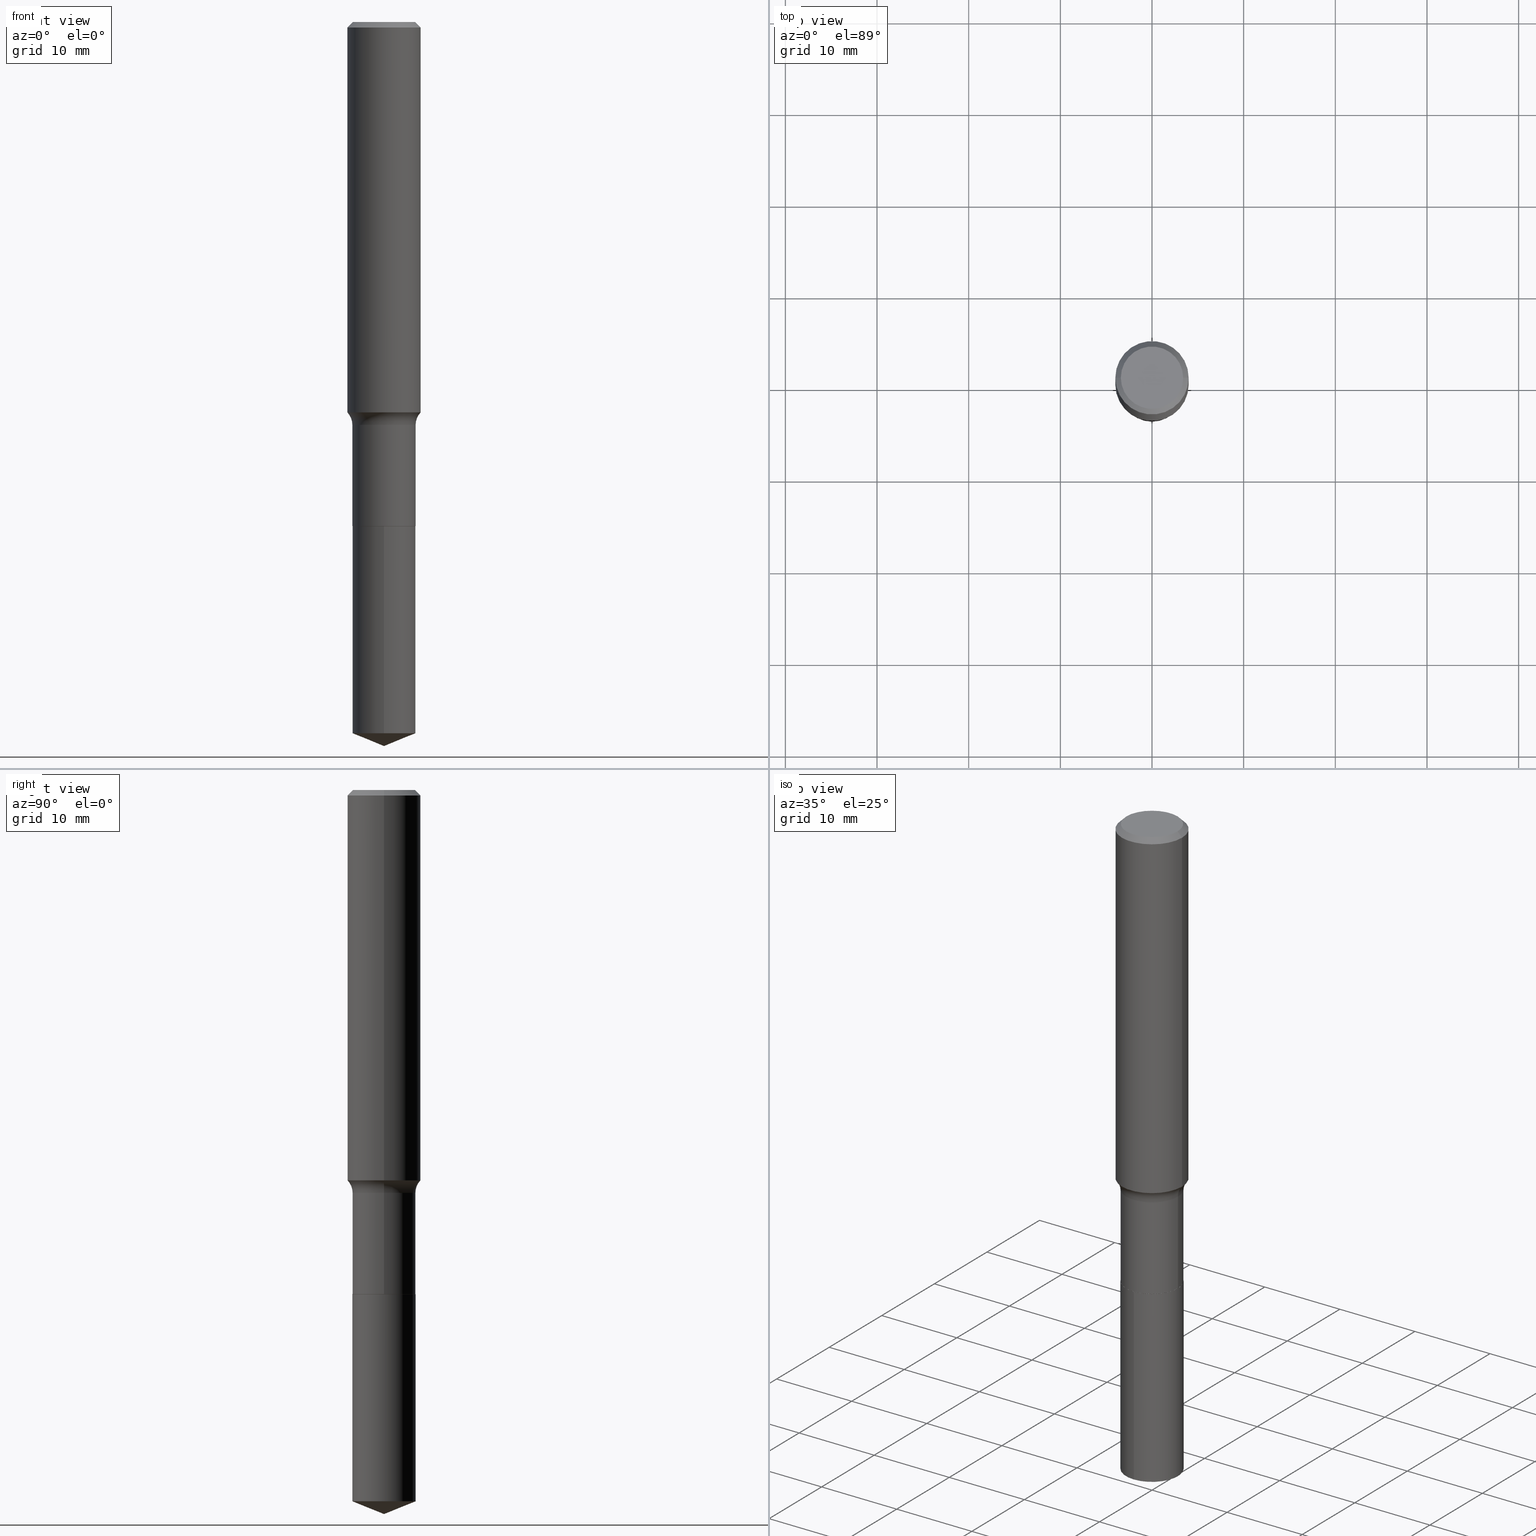
[diagram: canonical four-view strip — front | top / right | iso, engineering-drawing reading convention]
A machine part, canonical four-view strip (front | top / right | iso — engineering-drawing reading convention). The complete STEP part file that produces these views, byte-faithful:
ISO-10303-21;
HEADER;
FILE_DESCRIPTION (( 'STEP AP203' ),
    '1' );
FILE_NAME ('69159.STEP',
    '2024-04-19T17:18:02',
    ( '' ),
    ( '' ),
    'SwSTEP 2.0',
    'SolidWorks 2023',
    '' );
FILE_SCHEMA (( 'CONFIG_CONTROL_DESIGN' ));
ENDSEC;

DATA;
#1 = CLOSED_SHELL ( 'NONE', ( #127, #76, #310, #247, #19 ) ) ;
#2 =( GEOMETRIC_REPRESENTATION_CONTEXT ( 3 ) GLOBAL_UNCERTAINTY_ASSIGNED_CONTEXT ( ( #182 ) ) GLOBAL_UNIT_ASSIGNED_CONTEXT ( ( #431, #18, #315 ) ) REPRESENTATION_CONTEXT ( 'NONE', 'WORKASPACE' ) );
#3 = DIRECTION ( 'NONE',  ( 1.000000000000000000, -6.982962677686265922E-15, 0.000000000000000000 ) ) ;
#4 = DIRECTION ( 'NONE',  ( -2.445468806185136597E-29, 3.491481338843145583E-15, 1.000000000000000000 ) ) ;
#5 = CC_DESIGN_PERSON_AND_ORGANIZATION_ASSIGNMENT ( #398, #323, ( #259 ) ) ;
#6 = CARTESIAN_POINT ( 'NONE',  ( 0.1338749999999999940, -1.040731925365424925E-15, 4.101342130351390035E-18 ) ) ;
#7 = CLOSED_SHELL ( 'NONE', ( #382, #236, #197, #322, #146, #280, #91, #240, #203, #191, #163, #300 ) ) ;
#8 = CONICAL_SURFACE ( 'NONE', #360, 97.44436430772813651, 1.186823891356143967 ) ;
#9 = DIRECTION ( 'NONE',  ( -6.982962677686266711E-15, -1.000000000000000000, 4.021859394426593130E-15 ) ) ;
#10 = PRODUCT_DEFINITION ( 'UNKNOWN', '', #259, #217 ) ;
#11 = VERTEX_POINT ( 'NONE', #260 ) ;
#12 = FACE_OUTER_BOUND ( 'NONE', #369, .T. ) ;
#13 = APPROVAL_STATUS ( 'not_yet_approved' ) ;
#14 = CARTESIAN_POINT ( 'NONE',  ( 5.295173606032675561E-29, -7.560104542997063911E-15, -2.165299999999999780 ) ) ;
#15 = ORIENTED_EDGE ( 'NONE', *, *, #45, .T. ) ;
#16 = DIRECTION ( 'NONE',  ( -6.982962677686265922E-15, -1.000000000000000000, 3.498761904101837813E-15 ) ) ;
#17 = AXIS2_PLACEMENT_3D ( 'NONE', #358, #434, #126 ) ;
#18 =( NAMED_UNIT ( * ) PLANE_ANGLE_UNIT ( ) SI_UNIT ( $, .RADIAN. ) );
#19 = ADVANCED_FACE ( 'NONE', ( #414 ), #70, .F. ) ;
#20 = DIRECTION ( 'NONE',  ( -2.445468806185136597E-29, 3.491481338843145583E-15, 1.000000000000000000 ) ) ;
#21 = CC_DESIGN_PERSON_AND_ORGANIZATION_ASSIGNMENT ( #352, #56, ( #207 ) ) ;
#22 = ORIENTED_EDGE ( 'NONE', *, *, #54, .F. ) ;
#23 = CARTESIAN_POINT ( 'NONE',  ( 0.000000000000000000, 0.000000000000000000, 0.000000000000000000 ) ) ;
#24 = ORIENTED_EDGE ( 'NONE', *, *, #290, .F. ) ;
#25 = DIRECTION ( 'NONE',  ( 1.000000000000000000, -6.982962677686265922E-15, 4.876176775795935793E-29 ) ) ;
#26 = ORIENTED_EDGE ( 'NONE', *, *, #420, .T. ) ;
#27 = ORIENTED_EDGE ( 'NONE', *, *, #221, .F. ) ;
#28 = DATE_AND_TIME ( #487, #238 ) ;
#29 = DIRECTION ( 'NONE',  ( -2.445364985460457851E-29, 3.491630016029994283E-15, 1.000000000000000000 ) ) ;
#30 = ORIENTED_EDGE ( 'NONE', *, *, #460, .T. ) ;
#31 = CYLINDRICAL_SURFACE ( 'NONE', #441, 0.1575000000000000844 ) ;
#32 = DIRECTION ( 'NONE',  ( 2.445364985460457571E-29, -3.491630016029994283E-15, -1.000000000000000000 ) ) ;
#33 = CIRCLE ( 'NONE', #257, 0.1358499999999999985 ) ;
#34 = ORGANIZATION ( 'UNSPECIFIED', 'UNSPECIFIED', '' ) ;
#35 = FACE_OUTER_BOUND ( 'NONE', #253, .T. ) ;
#36 = CC_DESIGN_PERSON_AND_ORGANIZATION_ASSIGNMENT ( #93, #436, ( #10 ) ) ;
#37 = DIRECTION ( 'NONE',  ( -6.982962677686266711E-15, -1.000000000000000000, 4.021859394426593130E-15 ) ) ;
#38 = CARTESIAN_POINT ( 'NONE',  ( 7.471580323854498020E-29, -1.066770077841346112E-14, -3.055313037220293904 ) ) ;
#39 = AXIS2_PLACEMENT_3D ( 'NONE', #467, #282, #202 ) ;
#40 = VECTOR ( 'NONE', #381, 39.37007874015748143 ) ;
#41 = DIRECTION ( 'NONE',  ( -6.474490251793175473E-15, -0.9271838545667860920, 0.3746065934159154009 ) ) ;
#42 = DIRECTION ( 'NONE',  ( -2.445364985460457851E-29, 3.491630016029994283E-15, 1.000000000000000000 ) ) ;
#43 = ORIENTED_EDGE ( 'NONE', *, *, #54, .T. ) ;
#44 = DIRECTION ( 'NONE',  ( 0.000000000000000000, 0.000000000000000000, 1.000000000000000000 ) ) ;
#45 = EDGE_CURVE ( 'NONE', #164, #11, #33, .T. ) ;
#46 = LINE ( 'NONE', #49, #79 ) ;
#47 = CIRCLE ( 'NONE', #391, 0.1575000000000001954 ) ;
#48 = CIRCLE ( 'NONE', #319, 0.1358499999999999985 ) ;
#49 = CARTESIAN_POINT ( 'NONE',  ( 7.606027726323578018E-29, -1.085902381443112281E-14, -3.110199999999999854 ) ) ;
#50 = COORDINATED_UNIVERSAL_TIME_OFFSET ( 5, 0, .BEHIND. ) ;
#51 = DIRECTION ( 'NONE',  ( -2.445364985460457851E-29, 3.491630016029994283E-15, 1.000000000000000000 ) ) ;
#52 = EDGE_LOOP ( 'NONE', ( #99, #432, #477, #293 ) ) ;
#53 = ORIENTED_EDGE ( 'NONE', *, *, #114, .T. ) ;
#54 = EDGE_CURVE ( 'NONE', #486, #205, #188, .T. ) ;
#55 = EDGE_CURVE ( 'NONE', #486, #356, #249, .T. ) ;
#56 = PERSON_AND_ORGANIZATION_ROLE ( 'design_owner' ) ;
#57 = CONICAL_SURFACE ( 'NONE', #337, 0.1575000000000000011, 0.7853981633974447263 ) ;
#58 = PRODUCT_DEFINITION_SHAPE ( 'NONE', 'NONE',  #10 ) ;
#59 = CIRCLE ( 'NONE', #330, 0.1358499999999999985 ) ;
#60 = CC_DESIGN_APPROVAL ( #151, ( #259 ) ) ;
#61 = ORIENTED_EDGE ( 'NONE', *, *, #343, .F. ) ;
#62 = CARTESIAN_POINT ( 'NONE',  ( -0.1575000000000000844, 1.119104808822158392E-15, -7.747322767151481189E-30 ) ) ;
#63 = APPROVAL_DATE_TIME ( #248, #413 ) ;
#64 = FACE_OUTER_BOUND ( 'NONE', #389, .T. ) ;
#65 = ORIENTED_EDGE ( 'NONE', *, *, #377, .T. ) ;
#66 = AXIS2_PLACEMENT_3D ( 'NONE', #291, #339, #25 ) ;
#67 = APPROVAL_PERSON_ORGANIZATION ( #415, #413, #139 ) ;
#68 = VERTEX_POINT ( 'NONE', #481 ) ;
#69 = CARTESIAN_POINT ( 'NONE',  ( 5.295173606032675561E-29, -7.560104542997063911E-15, -2.165299999999999780 ) ) ;
#70 = PLANE ( 'NONE',  #304 ) ;
#71 = DIRECTION ( 'NONE',  ( -2.445468806185136597E-29, 3.491481338843145583E-15, 1.000000000000000000 ) ) ;
#72 = VECTOR ( 'NONE', #212, 39.37007874015748143 ) ;
#73 = AXIS2_PLACEMENT_3D ( 'NONE', #38, #42, #37 ) ;
#74 = CARTESIAN_POINT ( 'NONE',  ( 0.1353499999999999981, -8.505248541421898286E-15, -2.165299999999999780 ) ) ;
#75 = LINE ( 'NONE', #153, #220 ) ;
#76 = ADVANCED_FACE ( 'NONE', ( #204 ), #317, .T. ) ;
#77 = DIRECTION ( 'NONE',  ( -2.445364985460457851E-29, 3.491630016029994283E-15, 1.000000000000000000 ) ) ;
#78 = CIRCLE ( 'NONE', #17, 0.1358499999999999985 ) ;
#79 = VECTOR ( 'NONE', #463, 39.37007874015748143 ) ;
#80 = CARTESIAN_POINT ( 'NONE',  ( 5.295173606032675561E-29, -7.560104542997063911E-15, -2.165299999999999780 ) ) ;
#81 = DIRECTION ( 'NONE',  ( 1.000000000000000000, -6.982962677686264344E-15, 0.000000000000000000 ) ) ;
#82 = VERTEX_POINT ( 'NONE', #464 ) ;
#83 =( LENGTH_UNIT ( ) NAMED_UNIT ( * ) SI_UNIT ( $, .METRE. ) );
#84 = DIRECTION ( 'NONE',  ( -2.445468806185136597E-29, 3.491481338843145583E-15, 1.000000000000000000 ) ) ;
#85 = EDGE_LOOP ( 'NONE', ( #440, #143, #450 ) ) ;
#86 = ADVANCED_BREP_SHAPE_REPRESENTATION ( '69159', ( #198, #368, #426 ), #2 ) ;
#87 = AXIS2_PLACEMENT_3D ( 'NONE', #401, #399, #276 ) ;
#88 = CC_DESIGN_SECURITY_CLASSIFICATION ( #340, ( #259 ) ) ;
#89 = DIRECTION ( 'NONE',  ( -6.982962677686266711E-15, -1.000000000000000000, 3.491481338843145583E-15 ) ) ;
#90 = APPROVAL_ROLE ( '' ) ;
#91 = ADVANCED_FACE ( 'NONE', ( #469 ), #385, .F. ) ;
#92 = ORIENTED_EDGE ( 'NONE', *, *, #349, .F. ) ;
#93 = PERSON_AND_ORGANIZATION ( #393, #34 ) ;
#94 = CARTESIAN_POINT ( 'NONE',  ( 4.100728003481664027E-29, -5.854752783439843973E-15, -1.676867843543948355 ) ) ;
#95 = ORIENTED_EDGE ( 'NONE', *, *, #55, .T. ) ;
#96 = ORIENTED_EDGE ( 'NONE', *, *, #313, .T. ) ;
#97 = APPROVAL ( #320, 'UNSPECIFIED' ) ;
#98 = CARTESIAN_POINT ( 'NONE',  ( 4.232617409745234548E-29, -6.043055901269716567E-15, -1.730800000000000116 ) ) ;
#99 = ORIENTED_EDGE ( 'NONE', *, *, #377, .F. ) ;
#100 = FACE_OUTER_BOUND ( 'NONE', #444, .T. ) ;
#101 = ORIENTED_EDGE ( 'NONE', *, *, #449, .F. ) ;
#102 = ORIENTED_EDGE ( 'NONE', *, *, #412, .T. ) ;
#103 = DIRECTION ( 'NONE',  ( -2.445468806185136597E-29, 3.491481338843145583E-15, 1.000000000000000000 ) ) ;
#104 = VECTOR ( 'NONE', #214, 39.37007874015748143 ) ;
#105 = EDGE_LOOP ( 'NONE', ( #24, #30, #128 ) ) ;
#106 = CARTESIAN_POINT ( 'NONE',  ( -5.014852121625163022E-47, 7.159879756154476955E-33, 2.050671065172241055E-18 ) ) ;
#107 = EDGE_CURVE ( 'NONE', #222, #245, #135, .T. ) ;
#108 = EDGE_CURVE ( 'NONE', #446, #68, #166, .T. ) ;
#109 = DIRECTION ( 'NONE',  ( -1.000000000000000000, 6.982962677686265922E-15, 0.000000000000000000 ) ) ;
#110 = CARTESIAN_POINT ( 'NONE',  ( -0.1358499999999999708, 9.652723065300958949E-16, -6.682373320111287681E-30 ) ) ;
#111 = AXIS2_PLACEMENT_3D ( 'NONE', #23, #136, #195 ) ;
#112 = VECTOR ( 'NONE', #231, 39.37007874015748143 ) ;
#113 = DIRECTION ( 'NONE',  ( -2.445468806185136597E-29, 3.491481338843145583E-15, 1.000000000000000000 ) ) ;
#114 = EDGE_CURVE ( 'NONE', #181, #311, #297, .T. ) ;
#115 = CARTESIAN_POINT ( 'NONE',  ( -1.002970424325032604E-46, 1.431975951230895391E-32, 4.101342130344482109E-18 ) ) ;
#116 = DIRECTION ( 'NONE',  ( -2.445364985460457851E-29, 3.491630016029994283E-15, 1.000000000000000000 ) ) ;
#117 = AXIS2_PLACEMENT_3D ( 'NONE', #14, #51, #9 ) ;
#118 = VECTOR ( 'NONE', #41, 39.37007874015748143 ) ;
#119 = DIRECTION ( 'NONE',  ( 1.000000000000000000, -6.982962677686267499E-15, 4.883557194083112901E-29 ) ) ;
#120 = EDGE_CURVE ( 'NONE', #472, #356, #451, .T. ) ;
#121 = DIRECTION ( 'NONE',  ( -2.445468806185136597E-29, 3.491481338843145583E-15, 1.000000000000000000 ) ) ;
#122 = ORIENTED_EDGE ( 'NONE', *, *, #453, .F. ) ;
#123 = APPLICATION_PROTOCOL_DEFINITION ( 'international standard', 'config_control_design', 1994, #130 ) ;
#124 = AXIS2_PLACEMENT_3D ( 'NONE', #215, #103, #372 ) ;
#125 = CIRCLE ( 'NONE', #233, 0.1353499999999999981 ) ;
#126 = DIRECTION ( 'NONE',  ( -6.982962677686266711E-15, -1.000000000000000000, 4.021859394426593130E-15 ) ) ;
#127 = ADVANCED_FACE ( 'NONE', ( #355 ), #362, .T. ) ;
#128 = ORIENTED_EDGE ( 'NONE', *, *, #357, .F. ) ;
#129 = DATE_TIME_ROLE ( 'creation_date' ) ;
#130 = APPLICATION_CONTEXT ( 'configuration controlled 3d designs of mechanical parts and assemblies' ) ;
#131 = VERTEX_POINT ( 'NONE', #474 ) ;
#132 = PERSON_AND_ORGANIZATION_ROLE ( 'design_supplier' ) ;
#133 = ORIENTED_EDGE ( 'NONE', *, *, #421, .T. ) ;
#134 = ORIENTED_EDGE ( 'NONE', *, *, #150, .T. ) ;
#135 = CIRCLE ( 'NONE', #277, 0.07799999999999999989 ) ;
#136 = DIRECTION ( 'NONE',  ( -2.445468806185136597E-29, 3.491481338843145583E-15, 1.000000000000000000 ) ) ;
#137 = AXIS2_PLACEMENT_3D ( 'NONE', #394, #390, #81 ) ;
#138 = EDGE_LOOP ( 'NONE', ( #351, #318 ) ) ;
#139 = APPROVAL_ROLE ( '' ) ;
#140 = FACE_OUTER_BOUND ( 'NONE', #483, .T. ) ;
#141 = EDGE_LOOP ( 'NONE', ( #169, #102, #26, #122 ) ) ;
#142 = LINE ( 'NONE', #294, #284 ) ;
#143 = ORIENTED_EDGE ( 'NONE', *, *, #290, .T. ) ;
#144 = APPROVAL_STATUS ( 'not_yet_approved' ) ;
#145 = PLANE ( 'NONE',  #66 ) ;
#146 = ADVANCED_FACE ( 'NONE', ( #12 ), #168, .T. ) ;
#147 = APPROVAL_PERSON_ORGANIZATION ( #241, #151, #90 ) ;
#148 = FACE_OUTER_BOUND ( 'NONE', #366, .T. ) ;
#149 = DIRECTION ( 'NONE',  ( 1.000000000000000000, -6.982962677686265133E-15, 0.000000000000000000 ) ) ;
#150 = EDGE_CURVE ( 'NONE', #486, #222, #308, .T. ) ;
#151 = APPROVAL ( #13, 'UNSPECIFIED' ) ;
#152 = CARTESIAN_POINT ( 'NONE',  ( 0.1575000000000000844, -1.099816621735587677E-15, 7.679978421878603638E-30 ) ) ;
#153 = CARTESIAN_POINT ( 'NONE',  ( -9.486354797636263038E-16, -0.1358500000000075758, -2.165299999999999336 ) ) ;
#154 = CARTESIAN_POINT ( 'NONE',  ( 4.100728003481664027E-29, -5.854752783439843973E-15, -1.676867843543948355 ) ) ;
#155 = EDGE_CURVE ( 'NONE', #131, #442, #78, .T. ) ;
#156 = CIRCLE ( 'NONE', #271, 0.1358499999999999430 ) ;
#157 = EDGE_LOOP ( 'NONE', ( #329, #134, #96, #61 ) ) ;
#158 = VECTOR ( 'NONE', #457, 39.37007874015748143 ) ;
#159 = PERSON_AND_ORGANIZATION ( #393, #34 ) ;
#160 = CARTESIAN_POINT ( 'NONE',  ( 5.777420054612421980E-31, -8.248624663016985234E-17, -0.02362500000000015282 ) ) ;
#161 = CALENDAR_DATE ( 2024, 19, 4 ) ;
#162 = DIRECTION ( 'NONE',  ( 1.000000000000000000, -6.982962677686265922E-15, 0.000000000000000000 ) ) ;
#163 = ADVANCED_FACE ( 'NONE', ( #64 ), #145, .F. ) ;
#164 = VERTEX_POINT ( 'NONE', #448 ) ;
#165 = DIRECTION ( 'NONE',  ( -2.445468806185136597E-29, 3.491481338843145583E-15, 1.000000000000000000 ) ) ;
#166 = CIRCLE ( 'NONE', #39, 0.1358499999999999985 ) ;
#167 = AXIS2_PLACEMENT_3D ( 'NONE', #458, #456, #3 ) ;
#168 = CYLINDRICAL_SURFACE ( 'NONE', #232, 0.1358499999999999708 ) ;
#169 = ORIENTED_EDGE ( 'NONE', *, *, #254, .F. ) ;
#170 = APPROVAL_DATE_TIME ( #244, #151 ) ;
#171 = ORIENTED_EDGE ( 'NONE', *, *, #453, .T. ) ;
#172 = DIRECTION ( 'NONE',  ( -6.982962677686266711E-15, -1.000000000000000000, 4.021859394426593130E-15 ) ) ;
#173 = EDGE_CURVE ( 'NONE', #446, #131, #142, .T. ) ;
#174 = ORIENTED_EDGE ( 'NONE', *, *, #412, .F. ) ;
#175 = AXIS2_PLACEMENT_3D ( 'NONE', #395, #121, #353 ) ;
#176 = PLANE ( 'NONE',  #425 ) ;
#177 = CC_DESIGN_APPROVAL ( #97, ( #10 ) ) ;
#178 = ORIENTED_EDGE ( 'NONE', *, *, #328, .T. ) ;
#179 = SHAPE_DEFINITION_REPRESENTATION ( #58, #86 ) ;
#180 = DIRECTION ( 'NONE',  ( -6.982962677686266711E-15, -1.000000000000000000, 4.021859394426593130E-15 ) ) ;
#181 = VERTEX_POINT ( 'NONE', #286 ) ;
#182 = UNCERTAINTY_MEASURE_WITH_UNIT (LENGTH_MEASURE( 1.000000000000000082E-05 ), #431, 'distance_accuracy_value', 'NONE');
#183 = CC_DESIGN_DATE_AND_TIME_ASSIGNMENT ( #239, #129, ( #10 ) ) ;
#184 = LINE ( 'NONE', #334, #72 ) ;
#185 = DIRECTION ( 'NONE',  ( 6.982962677686265922E-15, 1.000000000000000000, -3.491630016029994283E-15 ) ) ;
#186 = APPLICATION_CONTEXT ( 'configuration controlled 3d designs of mechanical parts and assemblies' ) ;
#187 = DIRECTION ( 'NONE',  ( -1.000000000000000000, 6.982962677686265922E-15, -4.876176775795935793E-29 ) ) ;
#188 = CIRCLE ( 'NONE', #470, 0.07799999999999999989 ) ;
#189 = AXIS2_PLACEMENT_3D ( 'NONE', #342, #71, #263 ) ;
#190 = CARTESIAN_POINT ( 'NONE',  ( 5.295173606032675561E-29, -7.560104542997063911E-15, -2.165299999999999780 ) ) ;
#191 = ADVANCED_FACE ( 'NONE', ( #100 ), #176, .F. ) ;
#192 = LINE ( 'NONE', #303, #112 ) ;
#193 = DIRECTION ( 'NONE',  ( 1.000000000000000000, -6.982962677686266711E-15, 4.876170806578254279E-29 ) ) ;
#194 = AXIS2_PLACEMENT_3D ( 'NONE', #344, #268, #149 ) ;
#195 = DIRECTION ( 'NONE',  ( 1.000000000000000000, -6.982962677686265133E-15, 4.876176775795935232E-29 ) ) ;
#196 = DIRECTION ( 'NONE',  ( 1.000000000000000000, -6.982962677686265922E-15, 0.000000000000000000 ) ) ;
#197 = ADVANCED_FACE ( 'NONE', ( #218 ), #258, .T. ) ;
#198 = MANIFOLD_SOLID_BREP ( 'Body-Move/Copy2[1]', #1 ) ;
#199 = APPLICATION_PROTOCOL_DEFINITION ( 'international standard', 'config_control_design', 1994, #186 ) ;
#200 = ORIENTED_EDGE ( 'NONE', *, *, #150, .F. ) ;
#201 = VECTOR ( 'NONE', #491, 39.37007874015748143 ) ;
#202 = DIRECTION ( 'NONE',  ( -6.982962677686266711E-15, -1.000000000000000000, 4.021859394426593130E-15 ) ) ;
#203 = ADVANCED_FACE ( 'NONE', ( #140 ), #379, .T. ) ;
#204 = FACE_OUTER_BOUND ( 'NONE', #105, .T. ) ;
#205 = VERTEX_POINT ( 'NONE', #478 ) ;
#206 = CARTESIAN_POINT ( 'NONE',  ( -0.1575000000000001676, -4.735647974617684792E-15, -1.676867843543948355 ) ) ;
#207 = PRODUCT ( '69159', '69159', '', ( #468 ) ) ;
#208 = DIRECTION ( 'NONE',  ( 1.000000000000000000, -6.982962677686268288E-15, 0.000000000000000000 ) ) ;
#209 = AXIS2_PLACEMENT_3D ( 'NONE', #411, #443, #252 ) ;
#210 = DIRECTION ( 'NONE',  ( 1.000000000000000000, -6.982962677686265922E-15, 0.000000000000000000 ) ) ;
#211 = CARTESIAN_POINT ( 'NONE',  ( -0.2138499999999999568, -4.523560260846742430E-15, -1.730800000000000116 ) ) ;
#212 = DIRECTION ( 'NONE',  ( -0.7071067811866199593, 7.493145998870616062E-15, 0.7071067811864750752 ) ) ;
#213 = EDGE_CURVE ( 'NONE', #205, #245, #156, .T. ) ;
#214 = DIRECTION ( 'NONE',  ( -2.445468806185136877E-29, 3.491481338843145188E-15, 1.000000000000000000 ) ) ;
#215 = CARTESIAN_POINT ( 'NONE',  ( 0.000000000000000000, 0.000000000000000000, 0.000000000000000000 ) ) ;
#216 = ORIENTED_EDGE ( 'NONE', *, *, #459, .T. ) ;
#217 = DESIGN_CONTEXT ( 'detailed design', #186, 'design' ) ;
#218 = FACE_OUTER_BOUND ( 'NONE', #402, .T. ) ;
#219 = ORIENTED_EDGE ( 'NONE', *, *, #173, .T. ) ;
#220 = VECTOR ( 'NONE', #77, 39.37007874015748143 ) ;
#221 = EDGE_CURVE ( 'NONE', #442, #131, #59, .T. ) ;
#222 = VERTEX_POINT ( 'NONE', #326 ) ;
#223 = SECURITY_CLASSIFICATION_LEVEL ( 'unclassified' ) ;
#224 = FACE_OUTER_BOUND ( 'NONE', #157, .T. ) ;
#225 = ORIENTED_EDGE ( 'NONE', *, *, #107, .F. ) ;
#226 = CARTESIAN_POINT ( 'NONE',  ( 0.000000000000000000, 0.000000000000000000, 0.000000000000000000 ) ) ;
#227 = LINE ( 'NONE', #423, #309 ) ;
#228 = CC_DESIGN_PERSON_AND_ORGANIZATION_ASSIGNMENT ( #371, #256, ( #340 ) ) ;
#229 = CARTESIAN_POINT ( 'NONE',  ( 4.232617409745234548E-29, -6.043055901269716567E-15, -1.730800000000000116 ) ) ;
#230 = FACE_OUTER_BOUND ( 'NONE', #141, .T. ) ;
#231 = DIRECTION ( 'NONE',  ( -2.445468806185136877E-29, 3.491481338843145188E-15, 1.000000000000000000 ) ) ;
#232 = AXIS2_PLACEMENT_3D ( 'NONE', #274, #20, #439 ) ;
#233 = AXIS2_PLACEMENT_3D ( 'NONE', #190, #424, #387 ) ;
#234 = LINE ( 'NONE', #383, #201 ) ;
#235 = ORIENTED_EDGE ( 'NONE', *, *, #269, .F. ) ;
#236 = ADVANCED_FACE ( 'NONE', ( #416 ), #57, .T. ) ;
#237 = ORIENTED_EDGE ( 'NONE', *, *, #459, .F. ) ;
#238 = LOCAL_TIME ( 13, 18, 2.000000000000000000, #406 ) ;
#239 = DATE_AND_TIME ( #161, #455 ) ;
#240 = ADVANCED_FACE ( 'NONE', ( #224 ), #31, .T. ) ;
#241 = PERSON_AND_ORGANIZATION ( #393, #34 ) ;
#242 = ORIENTED_EDGE ( 'NONE', *, *, #313, .F. ) ;
#243 = ORIENTED_EDGE ( 'NONE', *, *, #120, .F. ) ;
#244 = DATE_AND_TIME ( #438, #489 ) ;
#245 = VERTEX_POINT ( 'NONE', #445 ) ;
#246 = AXIS2_PLACEMENT_3D ( 'NONE', #94, #84, #162 ) ;
#247 = ADVANCED_FACE ( 'NONE', ( #148 ), #250, .T. ) ;
#248 = DATE_AND_TIME ( #410, #338 ) ;
#249 = LINE ( 'NONE', #62, #104 ) ;
#250 = CYLINDRICAL_SURFACE ( 'NONE', #264, 0.1358499999999999985 ) ;
#251 = EDGE_LOOP ( 'NONE', ( #354, #219, #27, #101 ) ) ;
#252 = DIRECTION ( 'NONE',  ( -1.000000000000000000, 6.982962677686265922E-15, 0.000000000000000000 ) ) ;
#253 = EDGE_LOOP ( 'NONE', ( #200, #43, #465, #225 ) ) ;
#254 = EDGE_CURVE ( 'NONE', #82, #11, #184, .T. ) ;
#255 = ORIENTED_EDGE ( 'NONE', *, *, #108, .T. ) ;
#256 = PERSON_AND_ORGANIZATION_ROLE ( 'classification_officer' ) ;
#257 = AXIS2_PLACEMENT_3D ( 'NONE', #475, #281, #400 ) ;
#258 = CYLINDRICAL_SURFACE ( 'NONE', #124, 0.1575000000000000844 ) ;
#259 = PRODUCT_DEFINITION_FORMATION_WITH_SPECIFIED_SOURCE ( 'ANY', '', #207, .NOT_KNOWN. ) ;
#260 = CARTESIAN_POINT ( 'NONE',  ( -0.1358499999999999985, -5.835435045268582804E-15, -2.164800000000000058 ) ) ;
#261 = DIRECTION ( 'NONE',  ( -2.445468806185136597E-29, 3.491481338843145583E-15, 1.000000000000000000 ) ) ;
#262 = CARTESIAN_POINT ( 'NONE',  ( 5.295173606032675561E-29, -7.560104542997063911E-15, -2.165299999999999780 ) ) ;
#263 = DIRECTION ( 'NONE',  ( 1.000000000000000000, -6.982962677686265133E-15, 0.000000000000000000 ) ) ;
#264 = AXIS2_PLACEMENT_3D ( 'NONE', #262, #29, #180 ) ;
#265 = CIRCLE ( 'NONE', #73, 0.1358499999999999985 ) ;
#266 = CARTESIAN_POINT ( 'NONE',  ( -9.486354797636263038E-16, -0.1358500000000075758, -2.165299999999999336 ) ) ;
#267 = CARTESIAN_POINT ( 'NONE',  ( -8.866841304520801907E-28, 1.266064029174544030E-13, 36.25987874015748247 ) ) ;
#268 = DIRECTION ( 'NONE',  ( -2.445468806185136597E-29, 3.491481338843145583E-15, 1.000000000000000000 ) ) ;
#269 = EDGE_CURVE ( 'NONE', #311, #472, #485, .T. ) ;
#270 = DIRECTION ( 'NONE',  ( -2.445468806185136597E-29, 3.491481338843145583E-15, 1.000000000000000000 ) ) ;
#271 = AXIS2_PLACEMENT_3D ( 'NONE', #98, #261, #364 ) ;
#272 = FACE_OUTER_BOUND ( 'NONE', #447, .T. ) ;
#273 = DATE_AND_TIME ( #312, #386 ) ;
#274 = CARTESIAN_POINT ( 'NONE',  ( 0.000000000000000000, 0.000000000000000000, 0.000000000000000000 ) ) ;
#275 = ORIENTED_EDGE ( 'NONE', *, *, #421, .F. ) ;
#276 = DIRECTION ( 'NONE',  ( 1.000000000000000000, -6.982962677686267499E-15, 4.883557194083112901E-29 ) ) ;
#277 = AXIS2_PLACEMENT_3D ( 'NONE', #397, #89, #321 ) ;
#278 = CC_DESIGN_APPROVAL ( #413, ( #340 ) ) ;
#279 = APPROVAL_DATE_TIME ( #273, #97 ) ;
#280 = ADVANCED_FACE ( 'NONE', ( #298 ), #378, .T. ) ;
#281 = DIRECTION ( 'NONE',  ( -2.445468806185136597E-29, 3.491481338843145583E-15, 1.000000000000000000 ) ) ;
#282 = DIRECTION ( 'NONE',  ( -2.445364985460457851E-29, 3.491630016029994283E-15, 1.000000000000000000 ) ) ;
#283 = DIRECTION ( 'NONE',  ( -1.000000000000000000, 7.105427357600997914E-15, 0.000000000000000000 ) ) ;
#284 = VECTOR ( 'NONE', #375, 39.37007874015748143 ) ;
#285 = AXIS2_PLACEMENT_3D ( 'NONE', #229, #270, #119 ) ;
#286 = CARTESIAN_POINT ( 'NONE',  ( -0.1338749999999999940, 9.760872517903331886E-16, 4.101342130337800673E-18 ) ) ;
#287 = ORIENTED_EDGE ( 'NONE', *, *, #107, .T. ) ;
#288 = VERTEX_POINT ( 'NONE', #305 ) ;
#289 = EDGE_CURVE ( 'NONE', #222, #486, #47, .T. ) ;
#290 = EDGE_CURVE ( 'NONE', #288, #68, #347, .T. ) ;
#291 = CARTESIAN_POINT ( 'NONE',  ( 5.295173606032675561E-29, -7.560104542997063911E-15, -2.165299999999999780 ) ) ;
#292 = ORIENTED_EDGE ( 'NONE', *, *, #155, .F. ) ;
#293 = ORIENTED_EDGE ( 'NONE', *, *, #328, .F. ) ;
#294 = CARTESIAN_POINT ( 'NONE',  ( 9.652723065301489458E-16, 0.1358499999999924490, -2.165300000000000669 ) ) ;
#295 = ORIENTED_EDGE ( 'NONE', *, *, #213, .F. ) ;
#296 = DATE_TIME_ROLE ( 'classification_date' ) ;
#297 = CIRCLE ( 'NONE', #175, 0.1338749999999999940 ) ;
#298 = FACE_OUTER_BOUND ( 'NONE', #409, .T. ) ;
#299 = AXIS2_PLACEMENT_3D ( 'NONE', #115, #113, #193 ) ;
#300 = ADVANCED_FACE ( 'NONE', ( #230 ), #452, .T. ) ;
#301 = DIMENSIONAL_EXPONENTS ( 1.000000000000000000, 0.000000000000000000, 0.000000000000000000, 0.000000000000000000, 0.000000000000000000, 0.000000000000000000, 0.000000000000000000 ) ;
#302 = LINE ( 'NONE', #110, #40 ) ;
#303 = CARTESIAN_POINT ( 'NONE',  ( 0.1358499999999999708, -9.486354797636789603E-16, 6.624286149918776493E-30 ) ) ;
#304 = AXIS2_PLACEMENT_3D ( 'NONE', #376, #32, #185 ) ;
#305 = CARTESIAN_POINT ( 'NONE',  ( 7.605574177779116533E-29, -1.085966767585648801E-14, -3.110199999999999854 ) ) ;
#306 = CARTESIAN_POINT ( 'NONE',  ( 7.605574177779116533E-29, -1.085966767585648801E-14, -3.110199999999999854 ) ) ;
#307 = FACE_OUTER_BOUND ( 'NONE', #85, .T. ) ;
#308 = CIRCLE ( 'NONE', #246, 0.1575000000000001954 ) ;
#309 = VECTOR ( 'NONE', #380, 39.37007874015748143 ) ;
#310 = ADVANCED_FACE ( 'NONE', ( #307 ), #8, .T. ) ;
#311 = VERTEX_POINT ( 'NONE', #6 ) ;
#312 = CALENDAR_DATE ( 2024, 19, 4 ) ;
#313 = EDGE_CURVE ( 'NONE', #222, #472, #419, .T. ) ;
#314 = ORIENTED_EDGE ( 'NONE', *, *, #45, .F. ) ;
#315 =( NAMED_UNIT ( * ) SI_UNIT ( $, .STERADIAN. ) SOLID_ANGLE_UNIT ( ) );
#316 = DIRECTION ( 'NONE',  ( -2.445468806185136597E-29, 3.491481338843145583E-15, 1.000000000000000000 ) ) ;
#317 = CONICAL_SURFACE ( 'NONE', #359, 97.44436430772813651, 1.186823891356143967 ) ;
#318 = ORIENTED_EDGE ( 'NONE', *, *, #155, .T. ) ;
#319 = AXIS2_PLACEMENT_3D ( 'NONE', #384, #165, #208 ) ;
#320 = APPROVAL_STATUS ( 'not_yet_approved' ) ;
#321 = DIRECTION ( 'NONE',  ( 1.000000000000000000, -6.982962677686270655E-15, 0.000000000000000000 ) ) ;
#322 = ADVANCED_FACE ( 'NONE', ( #35 ), #392, .F. ) ;
#323 = PERSON_AND_ORGANIZATION_ROLE ( 'creator' ) ;
#324 = DIRECTION ( 'NONE',  ( -2.445364985460457851E-29, 3.491630016029994283E-15, 1.000000000000000000 ) ) ;
#325 = EDGE_LOOP ( 'NONE', ( #22, #408, #287, #216 ) ) ;
#326 = CARTESIAN_POINT ( 'NONE',  ( 0.1575000000000001676, -6.954569405175432242E-15, -1.676867843543948355 ) ) ;
#327 = ORIENTED_EDGE ( 'NONE', *, *, #349, .T. ) ;
#328 = EDGE_CURVE ( 'NONE', #181, #356, #234, .T. ) ;
#329 = ORIENTED_EDGE ( 'NONE', *, *, #55, .F. ) ;
#330 = AXIS2_PLACEMENT_3D ( 'NONE', #69, #336, #172 ) ;
#331 = CIRCLE ( 'NONE', #137, 0.1358499999999999430 ) ;
#332 = DIRECTION ( 'NONE',  ( 2.438088387897960049E-29, -3.491481338843145188E-15, -1.000000000000000000 ) ) ;
#333 = ORIENTED_EDGE ( 'NONE', *, *, #449, .T. ) ;
#334 = CARTESIAN_POINT ( 'NONE',  ( -0.1353499999999999981, -6.598384950145767731E-15, -2.165299999999999780 ) ) ;
#335 = VERTEX_POINT ( 'NONE', #74 ) ;
#336 = DIRECTION ( 'NONE',  ( -2.445364985460457851E-29, 3.491630016029994283E-15, 1.000000000000000000 ) ) ;
#337 = AXIS2_PLACEMENT_3D ( 'NONE', #407, #482, #109 ) ;
#338 = LOCAL_TIME ( 13, 18, 2.000000000000000000, #374 ) ;
#339 = DIRECTION ( 'NONE',  ( -2.438088387897960049E-29, 3.491481338843145188E-15, 1.000000000000000000 ) ) ;
#340 = SECURITY_CLASSIFICATION ( '', '', #223 ) ;
#341 = DIRECTION ( 'NONE',  ( 1.000000000000000000, -6.982962677686265133E-15, 0.000000000000000000 ) ) ;
#342 = CARTESIAN_POINT ( 'NONE',  ( 5.295173606032675561E-29, -7.560104542997063911E-15, -2.165299999999999780 ) ) ;
#343 = EDGE_CURVE ( 'NONE', #356, #472, #462, .T. ) ;
#344 = CARTESIAN_POINT ( 'NONE',  ( 5.295173606032675561E-29, -7.560104542997063911E-15, -2.165299999999999780 ) ) ;
#345 = CONICAL_SURFACE ( 'NONE', #194, 0.1353499999999999981, 0.7853981633975507526 ) ;
#346 = DIRECTION ( 'NONE',  ( -2.445468806185136597E-29, 3.491481338843145583E-15, 1.000000000000000000 ) ) ;
#347 = LINE ( 'NONE', #306, #118 ) ;
#348 = APPROVAL_ROLE ( '' ) ;
#349 = EDGE_CURVE ( 'NONE', #335, #82, #125, .T. ) ;
#350 = CIRCLE ( 'NONE', #299, 0.1338749999999999940 ) ;
#351 = ORIENTED_EDGE ( 'NONE', *, *, #221, .T. ) ;
#352 = PERSON_AND_ORGANIZATION ( #393, #34 ) ;
#353 = DIRECTION ( 'NONE',  ( 1.000000000000000000, -6.982962677686266711E-15, 4.876170806578254279E-29 ) ) ;
#354 = ORIENTED_EDGE ( 'NONE', *, *, #357, .T. ) ;
#355 = FACE_OUTER_BOUND ( 'NONE', #251, .T. ) ;
#356 = VERTEX_POINT ( 'NONE', #454 ) ;
#357 = EDGE_CURVE ( 'NONE', #68, #446, #265, .T. ) ;
#358 = CARTESIAN_POINT ( 'NONE',  ( 5.295173606032675561E-29, -7.560104542997063911E-15, -2.165299999999999780 ) ) ;
#359 = AXIS2_PLACEMENT_3D ( 'NONE', #267, #324, #16 ) ;
#360 = AXIS2_PLACEMENT_3D ( 'NONE', #461, #116, #492 ) ;
#361 = LENGTH_MEASURE_WITH_UNIT ( LENGTH_MEASURE( 0.02539999999999999897 ), #83 );
#362 = CYLINDRICAL_SURFACE ( 'NONE', #117, 0.1358499999999999985 ) ;
#363 = DIRECTION ( 'NONE',  ( 7.105427357601001859E-15, 1.000000000000000000, -3.491481338843145583E-15 ) ) ;
#364 = DIRECTION ( 'NONE',  ( 1.000000000000000000, -6.982962677686264344E-15, 0.000000000000000000 ) ) ;
#365 = CC_DESIGN_PERSON_AND_ORGANIZATION_ASSIGNMENT ( #476, #132, ( #259 ) ) ;
#366 = EDGE_LOOP ( 'NONE', ( #403, #255, #333, #292 ) ) ;
#367 = ORIENTED_EDGE ( 'NONE', *, *, #420, .F. ) ;
#368 = MANIFOLD_SOLID_BREP ( 'Body-Move/Copy2[2]', #7 ) ;
#369 = EDGE_LOOP ( 'NONE', ( #15, #373, #237, #275 ) ) ;
#370 = AXIS2_PLACEMENT_3D ( 'NONE', #160, #316, #210 ) ;
#371 = PERSON_AND_ORGANIZATION ( #393, #34 ) ;
#372 = DIRECTION ( 'NONE',  ( 1.000000000000000000, -6.982962677686267499E-15, 4.876176775795936353E-29 ) ) ;
#373 = ORIENTED_EDGE ( 'NONE', *, *, #427, .T. ) ;
#374 = COORDINATED_UNIVERSAL_TIME_OFFSET ( 5, 0, .BEHIND. ) ;
#375 = DIRECTION ( 'NONE',  ( -2.445364985460457851E-29, 3.491630016029994283E-15, 1.000000000000000000 ) ) ;
#376 = CARTESIAN_POINT ( 'NONE',  ( 5.295173606032675561E-29, -7.560104542997063911E-15, -2.165299999999999780 ) ) ;
#377 = EDGE_CURVE ( 'NONE', #311, #181, #350, .T. ) ;
#378 = CYLINDRICAL_SURFACE ( 'NONE', #111, 0.1358499999999999708 ) ;
#379 = CONICAL_SURFACE ( 'NONE', #209, 0.1575000000000000011, 0.7853981633974447263 ) ;
#380 = DIRECTION ( 'NONE',  ( 0.7071067811866199593, -2.468850131083015945E-15, 0.7071067811864750752 ) ) ;
#381 = DIRECTION ( 'NONE',  ( -2.445468806185136877E-29, 3.491481338843145188E-15, 1.000000000000000000 ) ) ;
#382 = ADVANCED_FACE ( 'NONE', ( #272 ), #345, .T. ) ;
#383 = CARTESIAN_POINT ( 'NONE',  ( -0.1575000000000000011, 1.017330375105417098E-15, -0.02362500000000015282 ) ) ;
#384 = CARTESIAN_POINT ( 'NONE',  ( 5.293950871629583880E-29, -7.558358802327641618E-15, -2.164800000000000058 ) ) ;
#385 = TOROIDAL_SURFACE ( 'NONE', #87, 0.2138499999999999568, 0.07799999999999999989 ) ;
#386 = LOCAL_TIME ( 13, 18, 2.000000000000000000, #50 ) ;
#387 = DIRECTION ( 'NONE',  ( 1.000000000000000000, -6.982962677686265133E-15, 0.000000000000000000 ) ) ;
#388 = CARTESIAN_POINT ( 'NONE',  ( 0.1575000000000000011, -1.182302868365756679E-15, -0.02362500000000015282 ) ) ;
#389 = EDGE_LOOP ( 'NONE', ( #92, #174 ) ) ;
#390 = DIRECTION ( 'NONE',  ( -2.445468806185136597E-29, 3.491481338843145583E-15, 1.000000000000000000 ) ) ;
#391 = AXIS2_PLACEMENT_3D ( 'NONE', #154, #346, #196 ) ;
#392 = TOROIDAL_SURFACE ( 'NONE', #285, 0.2138499999999999568, 0.07799999999999999989 ) ;
#393 = PERSON ( 'UNSPECIFIED', 'UNSPECIFIED', 'UNSPECIFIED', ('UNSPECIFIED'), ('UNSPECIFIED'), ('UNSPECIFIED') ) ;
#394 = CARTESIAN_POINT ( 'NONE',  ( 4.232617409745234548E-29, -6.043055901269716567E-15, -1.730800000000000116 ) ) ;
#395 = CARTESIAN_POINT ( 'NONE',  ( -1.002970424325032604E-46, 1.431975951230895391E-32, 4.101342130344482109E-18 ) ) ;
#396 = CC_DESIGN_DATE_AND_TIME_ASSIGNMENT ( #28, #296, ( #340 ) ) ;
#397 = CARTESIAN_POINT ( 'NONE',  ( 0.2138499999999999568, -7.536362469892923574E-15, -1.730800000000000116 ) ) ;
#398 = PERSON_AND_ORGANIZATION ( #393, #34 ) ;
#399 = DIRECTION ( 'NONE',  ( -2.445468806185136597E-29, 3.491481338843145583E-15, 1.000000000000000000 ) ) ;
#400 = DIRECTION ( 'NONE',  ( 1.000000000000000000, -6.982962677686268288E-15, 0.000000000000000000 ) ) ;
#401 = CARTESIAN_POINT ( 'NONE',  ( 4.232617409745234548E-29, -6.043055901269716567E-15, -1.730800000000000116 ) ) ;
#402 = EDGE_LOOP ( 'NONE', ( #430, #95, #243, #242 ) ) ;
#403 = ORIENTED_EDGE ( 'NONE', *, *, #173, .F. ) ;
#404 = CARTESIAN_POINT ( 'NONE',  ( 0.1575000000000000011, -1.163014681279185964E-15, -0.02362500000000015282 ) ) ;
#405 = ORIENTED_EDGE ( 'NONE', *, *, #427, .F. ) ;
#406 = COORDINATED_UNIVERSAL_TIME_OFFSET ( 5, 0, .BEHIND. ) ;
#407 = CARTESIAN_POINT ( 'NONE',  ( 5.777420054612421980E-31, -8.248624663016985234E-17, -0.02362500000000015282 ) ) ;
#408 = ORIENTED_EDGE ( 'NONE', *, *, #289, .F. ) ;
#409 = EDGE_LOOP ( 'NONE', ( #405, #171, #133, #295 ) ) ;
#410 = CALENDAR_DATE ( 2024, 19, 4 ) ;
#411 = CARTESIAN_POINT ( 'NONE',  ( 5.777420054612421980E-31, -8.248624663016985234E-17, -0.02362500000000015282 ) ) ;
#412 = EDGE_CURVE ( 'NONE', #82, #335, #471, .T. ) ;
#413 = APPROVAL ( #144, 'UNSPECIFIED' ) ;
#414 = FACE_OUTER_BOUND ( 'NONE', #138, .T. ) ;
#415 = PERSON_AND_ORGANIZATION ( #393, #34 ) ;
#416 = FACE_OUTER_BOUND ( 'NONE', #52, .T. ) ;
#417 = DIRECTION ( 'NONE',  ( -2.445468806185136597E-29, 3.491481338843145583E-15, 1.000000000000000000 ) ) ;
#418 = VECTOR ( 'NONE', #488, 39.37007874015748143 ) ;
#419 = LINE ( 'NONE', #152, #158 ) ;
#420 = EDGE_CURVE ( 'NONE', #335, #164, #227, .T. ) ;
#421 = EDGE_CURVE ( 'NONE', #164, #245, #192, .T. ) ;
#422 = CARTESIAN_POINT ( 'NONE',  ( 9.652723065301706394E-16, 0.1358499999999893404, -3.055313037220294348 ) ) ;
#423 = CARTESIAN_POINT ( 'NONE',  ( 0.1353499999999999981, -8.505248541421898286E-15, -2.165299999999999780 ) ) ;
#424 = DIRECTION ( 'NONE',  ( -2.445468806185136597E-29, 3.491481338843145583E-15, 1.000000000000000000 ) ) ;
#425 = AXIS2_PLACEMENT_3D ( 'NONE', #106, #332, #187 ) ;
#426 = AXIS2_PLACEMENT_3D ( 'NONE', #429, #44, #466 ) ;
#427 = EDGE_CURVE ( 'NONE', #11, #205, #302, .T. ) ;
#428 = PRODUCT_RELATED_PRODUCT_CATEGORY ( 'detail', '', ( #207 ) ) ;
#429 = CARTESIAN_POINT ( 'NONE',  ( 0.000000000000000000, 0.000000000000000000, 0.000000000000000000 ) ) ;
#430 = ORIENTED_EDGE ( 'NONE', *, *, #289, .T. ) ;
#431 =( CONVERSION_BASED_UNIT ( 'INCH', #361 ) LENGTH_UNIT ( ) NAMED_UNIT ( #301 ) );
#432 = ORIENTED_EDGE ( 'NONE', *, *, #269, .T. ) ;
#433 = COORDINATED_UNIVERSAL_TIME_OFFSET ( 5, 0, .BEHIND. ) ;
#434 = DIRECTION ( 'NONE',  ( -2.445364985460457851E-29, 3.491630016029994283E-15, 1.000000000000000000 ) ) ;
#435 = AXIS2_PLACEMENT_3D ( 'NONE', #80, #4, #341 ) ;
#436 = PERSON_AND_ORGANIZATION_ROLE ( 'creator' ) ;
#437 = ORIENTED_EDGE ( 'NONE', *, *, #343, .T. ) ;
#438 = CALENDAR_DATE ( 2024, 19, 4 ) ;
#439 = DIRECTION ( 'NONE',  ( 1.000000000000000000, -6.982962677686265133E-15, 4.876176775795935232E-29 ) ) ;
#440 = ORIENTED_EDGE ( 'NONE', *, *, #460, .F. ) ;
#441 = AXIS2_PLACEMENT_3D ( 'NONE', #226, #417, #490 ) ;
#442 = VERTEX_POINT ( 'NONE', #266 ) ;
#443 = DIRECTION ( 'NONE',  ( 2.445468806185136597E-29, -3.491481338843145583E-15, -1.000000000000000000 ) ) ;
#444 = EDGE_LOOP ( 'NONE', ( #53, #65 ) ) ;
#445 = CARTESIAN_POINT ( 'NONE',  ( 0.1358499999999999430, -6.991691381033394739E-15, -1.730800000000000116 ) ) ;
#446 = VERTEX_POINT ( 'NONE', #422 ) ;
#447 = EDGE_LOOP ( 'NONE', ( #327, #479, #314, #367 ) ) ;
#448 = CARTESIAN_POINT ( 'NONE',  ( 0.1358499999999999985, -8.506994282091320579E-15, -2.164800000000000058 ) ) ;
#449 = EDGE_CURVE ( 'NONE', #68, #442, #75, .T. ) ;
#450 = ORIENTED_EDGE ( 'NONE', *, *, #108, .F. ) ;
#451 = CIRCLE ( 'NONE', #370, 0.1575000000000000011 ) ;
#452 = CONICAL_SURFACE ( 'NONE', #435, 0.1353499999999999981, 0.7853981633975507526 ) ;
#453 = EDGE_CURVE ( 'NONE', #11, #164, #48, .T. ) ;
#454 = CARTESIAN_POINT ( 'NONE',  ( -0.1575000000000000011, -1.849514706212847898E-15, -0.02362500000000015282 ) ) ;
#455 = LOCAL_TIME ( 13, 18, 2.000000000000000000, #433 ) ;
#456 = DIRECTION ( 'NONE',  ( -2.445468806185136597E-29, 3.491481338843145583E-15, 1.000000000000000000 ) ) ;
#457 = DIRECTION ( 'NONE',  ( -2.445468806185136877E-29, 3.491481338843145188E-15, 1.000000000000000000 ) ) ;
#458 = CARTESIAN_POINT ( 'NONE',  ( 5.777420054612421980E-31, -8.248624663016985234E-17, -0.02362500000000015282 ) ) ;
#459 = EDGE_CURVE ( 'NONE', #245, #205, #331, .T. ) ;
#460 = EDGE_CURVE ( 'NONE', #288, #446, #46, .T. ) ;
#461 = CARTESIAN_POINT ( 'NONE',  ( -8.866841304520801907E-28, 1.266064029174544030E-13, 36.25987874015748247 ) ) ;
#462 = CIRCLE ( 'NONE', #167, 0.1575000000000000011 ) ;
#463 = DIRECTION ( 'NONE',  ( 6.588037525764788924E-15, 0.9271838545667886455, 0.3746065934159089617 ) ) ;
#464 = CARTESIAN_POINT ( 'NONE',  ( -0.1353499999999999981, -6.595735722971656530E-15, -2.165299999999999780 ) ) ;
#465 = ORIENTED_EDGE ( 'NONE', *, *, #213, .T. ) ;
#466 = DIRECTION ( 'NONE',  ( 1.000000000000000000, 0.000000000000000000, 0.000000000000000000 ) ) ;
#467 = CARTESIAN_POINT ( 'NONE',  ( 7.471580323854498020E-29, -1.066770077841346112E-14, -3.055313037220293904 ) ) ;
#468 = MECHANICAL_CONTEXT ( 'NONE', #130, 'mechanical' ) ;
#469 = FACE_OUTER_BOUND ( 'NONE', #325, .T. ) ;
#470 = AXIS2_PLACEMENT_3D ( 'NONE', #211, #363, #283 ) ;
#471 = CIRCLE ( 'NONE', #189, 0.1353499999999999981 ) ;
#472 = VERTEX_POINT ( 'NONE', #388 ) ;
#473 = COORDINATED_UNIVERSAL_TIME_OFFSET ( 5, 0, .BEHIND. ) ;
#474 = CARTESIAN_POINT ( 'NONE',  ( 9.652723065301710339E-16, 0.1358499999999924490, -2.165300000000000669 ) ) ;
#475 = CARTESIAN_POINT ( 'NONE',  ( 5.293950871629583880E-29, -7.558358802327641618E-15, -2.164800000000000058 ) ) ;
#476 = PERSON_AND_ORGANIZATION ( #393, #34 ) ;
#477 = ORIENTED_EDGE ( 'NONE', *, *, #120, .T. ) ;
#478 = CARTESIAN_POINT ( 'NONE',  ( -0.1358499999999999430, -5.835435045268582804E-15, -1.730800000000000116 ) ) ;
#479 = ORIENTED_EDGE ( 'NONE', *, *, #254, .T. ) ;
#480 = APPROVAL_PERSON_ORGANIZATION ( #159, #97, #348 ) ;
#481 = CARTESIAN_POINT ( 'NONE',  ( -9.486354797636046101E-16, -0.1358500000000106567, -3.055313037220293459 ) ) ;
#482 = DIRECTION ( 'NONE',  ( 2.445468806185136597E-29, -3.491481338843145583E-15, -1.000000000000000000 ) ) ;
#483 = EDGE_LOOP ( 'NONE', ( #235, #484, #178, #437 ) ) ;
#484 = ORIENTED_EDGE ( 'NONE', *, *, #114, .F. ) ;
#485 = LINE ( 'NONE', #404, #418 ) ;
#486 = VERTEX_POINT ( 'NONE', #206 ) ;
#487 = CALENDAR_DATE ( 2024, 19, 4 ) ;
#488 = DIRECTION ( 'NONE',  ( 0.7071067811865450192, -7.319954787623246579E-15, -0.7071067811865500152 ) ) ;
#489 = LOCAL_TIME ( 13, 18, 2.000000000000000000, #473 ) ;
#490 = DIRECTION ( 'NONE',  ( 1.000000000000000000, -6.982962677686267499E-15, 4.876176775795936353E-29 ) ) ;
#491 = DIRECTION ( 'NONE',  ( -0.7071067811865450192, 2.468850131082230634E-15, -0.7071067811865500152 ) ) ;
#492 = DIRECTION ( 'NONE',  ( -6.982962677686265922E-15, -1.000000000000000000, 3.498761904101837813E-15 ) ) ;
ENDSEC;
END-ISO-10303-21;
